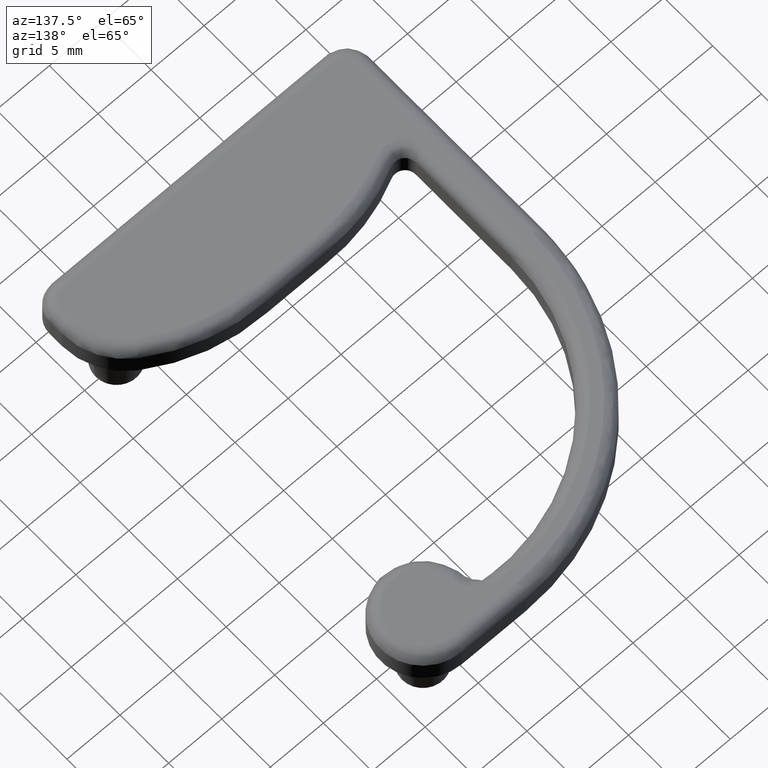
[diagram: clean part render]
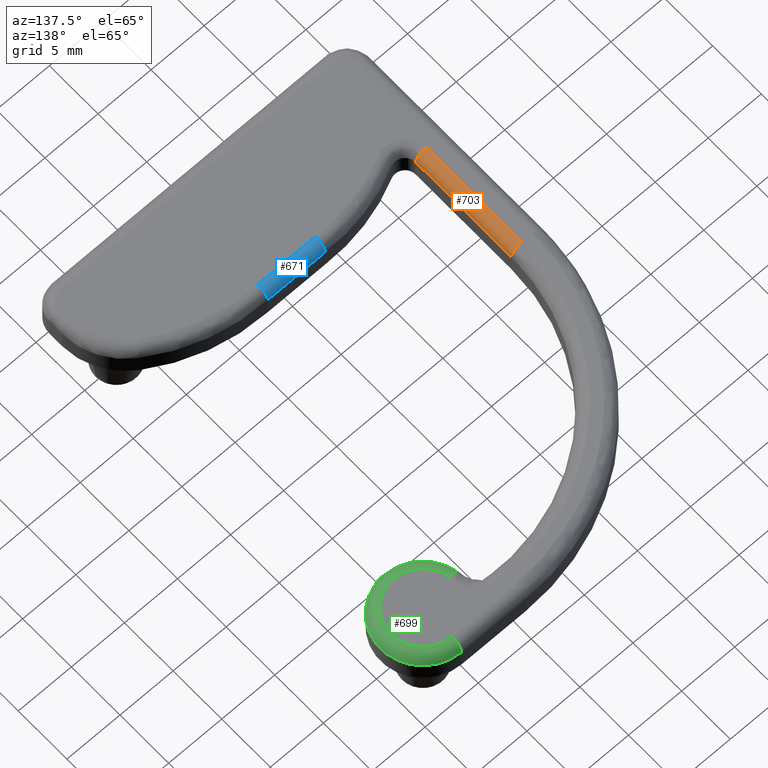
[diagram: same view with three faces highlighted in distinct colors, each labeled with its STEP entity id]
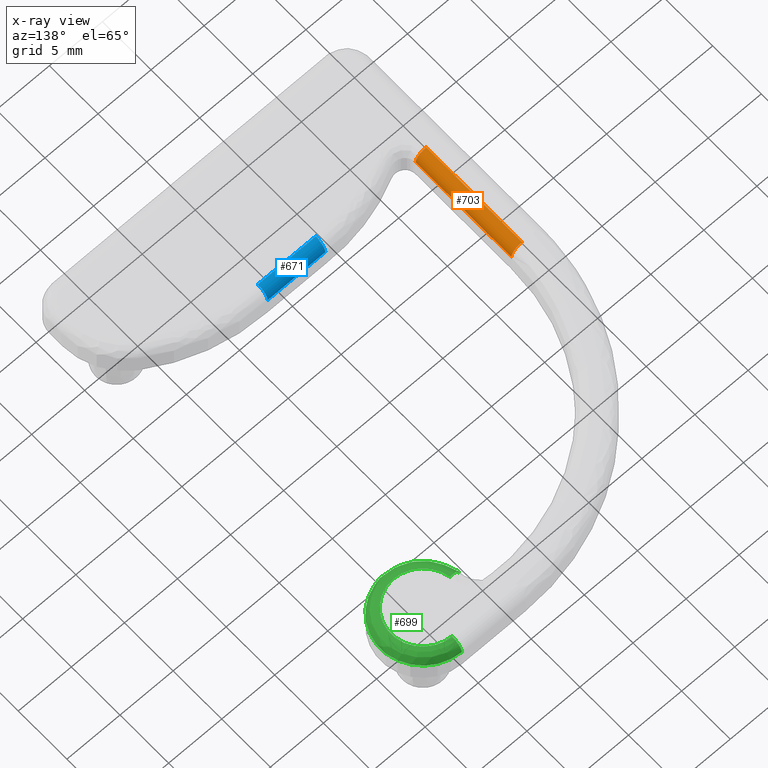
[diagram: x-ray of the same camera — body ghosted, the three highlighted faces saturated]
A machine part, auxiliary view with three faces highlighted in distinct colors.
The next image is the same camera in x-ray (body ghosted, the three faces saturated) — at least one of them is partly hidden behind the body in this view.
Their STEP definitions:

[orange] entity #703 — the highlighted cylindrical surface (edge-blend (fillet) strip) has radius 1 mm, axis along (0, -1, 0).
#34=CYLINDRICAL_SURFACE('',#793,1.);
#97=FACE_OUTER_BOUND('',#148,.T.);
#148=EDGE_LOOP('',(#626,#627,#628,#629));
#220=CIRCLE('',#792,1.);
#221=CIRCLE('',#794,1.);
#239=LINE('',#1252,#274);
#249=LINE('',#1288,#284);
#274=VECTOR('',#874,9.84327927194113);
#284=VECTOR('',#910,9.84327927194113);
#329=VERTEX_POINT('',#1249);
#330=VERTEX_POINT('',#1251);
#342=VERTEX_POINT('',#1282);
#343=VERTEX_POINT('',#1286);
#395=EDGE_CURVE('',#330,#329,#239,.T.);
#414=EDGE_CURVE('',#343,#342,#249,.T.);
#450=EDGE_CURVE('',#343,#330,#220,.T.);
#451=EDGE_CURVE('',#342,#329,#221,.T.);
#626=ORIENTED_EDGE('',*,*,#450,.T.);
#627=ORIENTED_EDGE('',*,*,#395,.T.);
#628=ORIENTED_EDGE('',*,*,#451,.F.);
#629=ORIENTED_EDGE('',*,*,#414,.F.);
#703=ADVANCED_FACE('',(#97),#34,.T.);
#792=AXIS2_PLACEMENT_3D('',#1884,#999,#1000);
#793=AXIS2_PLACEMENT_3D('',#1885,#1001,#1002);
#794=AXIS2_PLACEMENT_3D('',#1886,#1003,#1004);
#874=DIRECTION('',(0.,-1.,0.));
#910=DIRECTION('',(0.,-1.,0.));
#999=DIRECTION('center_axis',(0.,-1.,0.));
#1000=DIRECTION('ref_axis',(1.,0.,0.));
#1001=DIRECTION('center_axis',(0.,-1.,0.));
#1002=DIRECTION('ref_axis',(1.,0.,0.));
#1003=DIRECTION('center_axis',(0.,-1.,0.));
#1004=DIRECTION('ref_axis',(1.,0.,0.));
#1249=CARTESIAN_POINT('',(-2.00000043954517,5.65466681393093,2.99999999999989));
#1251=CARTESIAN_POINT('',(-2.00000043954512,15.4979460858721,2.99999999999989));
#1252=CARTESIAN_POINT('',(-2.00000043954512,15.4979460858721,2.99999999999989));
#1282=CARTESIAN_POINT('',(-1.00000043954512,5.65466681393093,1.99999999999994));
#1286=CARTESIAN_POINT('',(-1.00000043954506,15.4979460858721,1.99999999999994));
#1288=CARTESIAN_POINT('',(-1.00000043954506,15.4979460858721,1.99999999999994));
#1884=CARTESIAN_POINT('Origin',(-2.00000043954506,15.4979460858721,1.99999999999989));
#1885=CARTESIAN_POINT('Origin',(-2.00000043954506,15.4979460858721,1.99999999999989));
#1886=CARTESIAN_POINT('Origin',(-2.00000043954512,5.65466681393093,1.99999999999989));

[blue] entity #671 — the highlighted cylindrical surface (edge-blend (fillet) strip) has radius 1 mm, axis along (1, 0, 0).
#18=CYLINDRICAL_SURFACE('',#737,1.);
#38=B_SPLINE_CURVE_WITH_KNOTS('',3,(#1144,#1145,#1146,#1147,#1148,#1149,
#1150,#1151,#1152,#1153,#1154,#1155,#1156,#1157,#1158,#1159,#1160,#1161,
#1162,#1163,#1164,#1165),.UNSPECIFIED.,.F.,.F.,(4,2,2,2,2,2,2,2,2,2,4),
(0.,0.0187764118785747,0.0331459025856078,0.0415016401362256,0.0531208293565562,
0.0664628475253258,0.0768201627320477,0.0802136985106021,0.0819343012419815,
0.0837191985309972,0.0838978956681293),.UNSPECIFIED.);
#39=B_SPLINE_CURVE_WITH_KNOTS('',3,(#1172,#1173,#1174,#1175,#1176,#1177,
#1178,#1179,#1180,#1181,#1182,#1183,#1184,#1185,#1186,#1187,#1188,#1189,
#1190,#1191,#1192,#1193),.UNSPECIFIED.,.F.,.F.,(4,2,2,2,2,2,2,2,2,2,4),
(-0.367621750021959,-0.285178365813106,-0.222082079184542,-0.185391483001259,
-0.13436736488732,-0.0757785645587134,-0.0302931636690793,-0.0153905926577266,
-0.00783779646558659,0.,0.000785811829450485),.UNSPECIFIED.);
#65=FACE_OUTER_BOUND('',#116,.T.);
#116=EDGE_LOOP('',(#485,#486,#487,#488));
#237=LINE('',#1169,#272);
#238=LINE('',#1171,#273);
#272=VECTOR('',#862,5.43272788734791);
#273=VECTOR('',#863,5.46204718591272);
#323=VERTEX_POINT('',#1141);
#324=VERTEX_POINT('',#1143);
#325=VERTEX_POINT('',#1168);
#326=VERTEX_POINT('',#1170);
#386=EDGE_CURVE('',#324,#323,#38,.T.);
#388=EDGE_CURVE('',#324,#325,#237,.T.);
#389=EDGE_CURVE('',#323,#326,#238,.T.);
#390=EDGE_CURVE('',#325,#326,#39,.T.);
#485=ORIENTED_EDGE('',*,*,#388,.F.);
#486=ORIENTED_EDGE('',*,*,#386,.T.);
#487=ORIENTED_EDGE('',*,*,#389,.T.);
#488=ORIENTED_EDGE('',*,*,#390,.F.);
#671=ADVANCED_FACE('',(#65),#18,.T.);
#737=AXIS2_PLACEMENT_3D('',#1167,#860,#861);
#860=DIRECTION('center_axis',(1.,0.,0.));
#861=DIRECTION('ref_axis',(0.,1.,0.));
#862=DIRECTION('',(1.,0.,0.));
#863=DIRECTION('',(1.,0.,0.));
#1141=CARTESIAN_POINT('',(8.2689725897549,5.4979427036775,3.00000000000047));
#1143=CARTESIAN_POINT('',(8.28363203028931,6.4979427036775,2.00000000000047));
#1144=CARTESIAN_POINT('Ctrl Pts',(8.28363203028931,6.4979427036775,2.00000000000047));
#1145=CARTESIAN_POINT('Ctrl Pts',(8.28363203028931,6.4979427036775,2.06258803959572));
#1146=CARTESIAN_POINT('Ctrl Pts',(8.27804729878791,6.4923521412715,2.13829761606145));
#1147=CARTESIAN_POINT('Ctrl Pts',(8.2788626854953,6.45682966577335,2.29190299400868));
#1148=CARTESIAN_POINT('Ctrl Pts',(8.2835850595113,6.43410229193456,2.36206085613906));
#1149=CARTESIAN_POINT('Ctrl Pts',(8.2818268536606,6.37394238646976,2.48492756783434));
#1150=CARTESIAN_POINT('Ctrl Pts',(8.28033865893028,6.34844340395152,2.52845542025795));
#1151=CARTESIAN_POINT('Ctrl Pts',(8.27892711121172,6.2786847613811,2.62888903903634));
#1152=CARTESIAN_POINT('Ctrl Pts',(8.27986993497776,6.23820348263556,2.6739567361342));
#1153=CARTESIAN_POINT('Ctrl Pts',(8.27882881997318,6.16688909214847,2.74526262970485));
#1154=CARTESIAN_POINT('Ctrl Pts',(8.27626522854998,6.12188382703021,2.78418411533862));
#1155=CARTESIAN_POINT('Ctrl Pts',(8.27496953731188,6.02680116212799,2.85021659354211));
#1156=CARTESIAN_POINT('Ctrl Pts',(8.28853728768676,5.946501200319,2.90681126321354));
#1157=CARTESIAN_POINT('Ctrl Pts',(8.25671462167753,5.75245886212126,2.96837261527278));
#1158=CARTESIAN_POINT('Ctrl Pts',(8.24708717974692,5.70392302765706,2.97981524571215));
#1159=CARTESIAN_POINT('Ctrl Pts',(8.24324216970884,5.63001619823286,2.99155962248366));
#1160=CARTESIAN_POINT('Ctrl Pts',(8.243785289827,5.60529717882294,2.99453507772239));
#1161=CARTESIAN_POINT('Ctrl Pts',(8.25056166090057,5.55453619992729,2.99873408006576));
#1162=CARTESIAN_POINT('Ctrl Pts',(8.25685291528281,5.52968067215028,2.99979480098444));
#1163=CARTESIAN_POINT('Ctrl Pts',(8.2670376582606,5.5028028981398,2.99999118087067));
#1164=CARTESIAN_POINT('Ctrl Pts',(8.26799173727985,5.50036763938052,3.00000000000047));
#1165=CARTESIAN_POINT('Ctrl Pts',(8.26897258975325,5.49794270367937,3.00000000000047));
#1167=CARTESIAN_POINT('Origin',(8.26897258975493,5.4979427036775,2.00000000000047));
#1168=CARTESIAN_POINT('',(13.716360212321,6.49794270702687,2.00000000000069));
#1169=CARTESIAN_POINT('',(8.28363261832769,6.4979427036775,2.00000000000047));
#1170=CARTESIAN_POINT('',(13.7310197756676,5.4979427036775,3.00000000000078));
#1171=CARTESIAN_POINT('',(8.2689725897549,5.4979427036775,3.00000000000047));
#1172=CARTESIAN_POINT('Ctrl Pts',(13.7163606796547,6.4979427036775,2.00000000000078));
#1173=CARTESIAN_POINT('Ctrl Pts',(13.716360679654,6.49794270367748,2.06258748575544));
#1174=CARTESIAN_POINT('Ctrl Pts',(13.7219455328792,6.49235223949033,2.13829528122057));
#1175=CARTESIAN_POINT('Ctrl Pts',(13.7211303693667,6.45683082582597,2.29189943952176));
#1176=CARTESIAN_POINT('Ctrl Pts',(13.716407678229,6.43410390406114,2.36205612733675));
#1177=CARTESIAN_POINT('Ctrl Pts',(13.7181655771669,6.37394614216231,2.48492073254201));
#1178=CARTESIAN_POINT('Ctrl Pts',(13.7196538274099,6.34844774305223,2.52844839518426));
#1179=CARTESIAN_POINT('Ctrl Pts',(13.7210655830963,6.2786877827028,2.62888577083987));
#1180=CARTESIAN_POINT('Ctrl Pts',(13.7201226049449,6.23820445620687,2.67395576256083));
#1181=CARTESIAN_POINT('Ctrl Pts',(13.7211637072536,6.16688855667836,2.74526316524671));
#1182=CARTESIAN_POINT('Ctrl Pts',(13.7237274133589,6.12188241305615,2.78418536986664));
#1183=CARTESIAN_POINT('Ctrl Pts',(13.7250230194604,6.02679420943057,2.85022121039856));
#1184=CARTESIAN_POINT('Ctrl Pts',(13.711454703845,5.94649154044698,2.90681773830984));
#1185=CARTESIAN_POINT('Ctrl Pts',(13.7432823503963,5.75243696965822,2.96837844313015));
#1186=CARTESIAN_POINT('Ctrl Pts',(13.7529099472955,5.70390007633678,2.97982010554667));
#1187=CARTESIAN_POINT('Ctrl Pts',(13.7567511886608,5.63000232567844,2.99156121189281));
#1188=CARTESIAN_POINT('Ctrl Pts',(13.7562073901866,5.60529339579597,2.994535231225));
#1189=CARTESIAN_POINT('Ctrl Pts',(13.7494328359899,5.55454389386935,2.99873360902288));
#1190=CARTESIAN_POINT('Ctrl Pts',(13.7431420827945,5.52968960507087,2.9997944869373));
#1191=CARTESIAN_POINT('Ctrl Pts',(13.7329573776077,5.50280970775698,2.9999911560023));
#1192=CARTESIAN_POINT('Ctrl Pts',(13.7320019696159,5.50037095587385,3.00000000000078));
#1193=CARTESIAN_POINT('Ctrl Pts',(13.7310197756668,5.49794270367782,3.00000000000078));

[green] entity #699 — the highlighted face is a freeform B-spline surface patch.
#46=B_SPLINE_SURFACE_WITH_KNOTS('',3,3,((#1573,#1574,#1575,#1576,#1577,
#1578,#1579,#1580,#1581,#1582,#1583,#1584,#1585,#1586,#1587,#1588,#1589,
#1590,#1591),(#1592,#1593,#1594,#1595,#1596,#1597,#1598,#1599,#1600,#1601,
#1602,#1603,#1604,#1605,#1606,#1607,#1608,#1609,#1610),(#1611,#1612,#1613,
#1614,#1615,#1616,#1617,#1618,#1619,#1620,#1621,#1622,#1623,#1624,#1625,
#1626,#1627,#1628,#1629),(#1630,#1631,#1632,#1633,#1634,#1635,#1636,#1637,
#1638,#1639,#1640,#1641,#1642,#1643,#1644,#1645,#1646,#1647,#1648),(#1649,
#1650,#1651,#1652,#1653,#1654,#1655,#1656,#1657,#1658,#1659,#1660,#1661,
#1662,#1663,#1664,#1665,#1666,#1667),(#1668,#1669,#1670,#1671,#1672,#1673,
#1674,#1675,#1676,#1677,#1678,#1679,#1680,#1681,#1682,#1683,#1684,#1685,
#1686),(#1687,#1688,#1689,#1690,#1691,#1692,#1693,#1694,#1695,#1696,#1697,
#1698,#1699,#1700,#1701,#1702,#1703,#1704,#1705)),.UNSPECIFIED.,.F.,.F.,
 .F.,(4,1,1,1,4),(4,1,1,1,1,1,1,1,1,1,1,1,1,1,1,1,4),(0.,0.390180644032257,
0.780361288064513,1.17054193209677,1.57139639420544),(-0.0106738180764169,
1.02440613742232,2.04881227484464,3.07321841226696,4.09762454968928,5.12203068711161,
6.14643682453392,7.17084296195624,8.19524909937856,9.21965523680089,10.2440613742232,
11.2684675116455,12.2928736490678,13.3172797864902,14.3416859239125,15.3660920613348,
16.4011720168335),.UNSPECIFIED.);
#93=FACE_OUTER_BOUND('',#144,.T.);
#144=EDGE_LOOP('',(#610,#611,#612,#613));
#195=CIRCLE('',#746,3.);
#204=CIRCLE('',#763,4.);
#216=CIRCLE('',#788,1.);
#217=CIRCLE('',#789,1.);
#333=VERTEX_POINT('',#1257);
#334=VERTEX_POINT('',#1259);
#346=VERTEX_POINT('',#1298);
#347=VERTEX_POINT('',#1302);
#399=EDGE_CURVE('',#334,#333,#195,.T.);
#422=EDGE_CURVE('',#347,#346,#204,.T.);
#446=EDGE_CURVE('',#347,#334,#216,.T.);
#447=EDGE_CURVE('',#346,#333,#217,.T.);
#610=ORIENTED_EDGE('',*,*,#446,.T.);
#611=ORIENTED_EDGE('',*,*,#399,.T.);
#612=ORIENTED_EDGE('',*,*,#447,.F.);
#613=ORIENTED_EDGE('',*,*,#422,.F.);
#699=ADVANCED_FACE('',(#93),#46,.T.);
#746=AXIS2_PLACEMENT_3D('',#1260,#881,#882);
#763=AXIS2_PLACEMENT_3D('',#1304,#929,#930);
#788=AXIS2_PLACEMENT_3D('',#1572,#991,#992);
#789=AXIS2_PLACEMENT_3D('',#1706,#993,#994);
#881=DIRECTION('center_axis',(0.,0.,-1.));
#882=DIRECTION('ref_axis',(-1.,0.,0.));
#929=DIRECTION('center_axis',(0.,0.,-1.));
#930=DIRECTION('ref_axis',(-1.,0.,0.));
#991=DIRECTION('center_axis',(1.,0.,0.));
#992=DIRECTION('ref_axis',(0.,1.,0.));
#993=DIRECTION('center_axis',(-0.146926884603766,0.989147355342283,-8.351826E-15));
#994=DIRECTION('ref_axis',(-0.989147355342283,-0.146926884603766,-5.622652E-14));
#1257=CARTESIAN_POINT('',(19.0325574944278,31.0571654320609,3.00000000000108));
#1259=CARTESIAN_POINT('',(21.9999995604546,34.4979460858721,3.00000000000125));
#1260=CARTESIAN_POINT('Origin',(21.9999995604546,31.4979460858722,3.00000000000125));
#1298=CARTESIAN_POINT('',(18.0434101390856,30.9102385474571,2.00000000000103));
#1302=CARTESIAN_POINT('',(21.9999995604547,35.4979460858721,2.00000000000125));
#1304=CARTESIAN_POINT('Origin',(21.9999995604547,31.4979460858722,2.00000000000125));
#1572=CARTESIAN_POINT('Origin',(21.9999995604547,34.4979460858722,2.00000000000125));
#1573=CARTESIAN_POINT('Ctrl Pts',(21.9881495021506,35.4979282884099,2.00000000000125));
#1574=CARTESIAN_POINT('Ctrl Pts',(22.3711730462709,35.499078960041,2.00000000000127));
#1575=CARTESIAN_POINT('Ctrl Pts',(23.1381403459129,35.3903354786945,2.00000000000132));
#1576=CARTESIAN_POINT('Ctrl Pts',(24.18995515693,34.9101997344768,2.00000000000137));
#1577=CARTESIAN_POINT('Ctrl Pts',(25.0620099372897,34.1558451462971,2.00000000000143));
#1578=CARTESIAN_POINT('Ctrl Pts',(25.6862497871965,33.1865994515913,2.00000000000146));
#1579=CARTESIAN_POINT('Ctrl Pts',(26.0125237209784,32.0808261508489,2.00000000000148));
#1580=CARTESIAN_POINT('Ctrl Pts',(26.0143670720204,30.9279270104868,2.00000000000148));
#1581=CARTESIAN_POINT('Ctrl Pts',(25.6916536987487,29.8211138808366,2.00000000000146));
#1582=CARTESIAN_POINT('Ctrl Pts',(25.0704688231612,28.8498727067961,2.00000000000143));
#1583=CARTESIAN_POINT('Ctrl Pts',(24.2010369429926,28.0927278900294,2.00000000000137));
#1584=CARTESIAN_POINT('Ctrl Pts',(23.1536509334957,27.610896205346,2.00000000000132));
#1585=CARTESIAN_POINT('Ctrl Pts',(22.0129929600043,27.4433276721984,2.00000000000125));
#1586=CARTESIAN_POINT('Ctrl Pts',(20.8712818113489,27.6035928447599,2.00000000000119));
#1587=CARTESIAN_POINT('Ctrl Pts',(19.8208373793614,28.0786497910557,2.00000000000113));
#1588=CARTESIAN_POINT('Ctrl Pts',(18.9465412413911,28.8304055012343,2.00000000000108));
#1589=CARTESIAN_POINT('Ctrl Pts',(18.31707636643,29.8002604907769,2.00000000000104));
#1590=CARTESIAN_POINT('Ctrl Pts',(18.0968249235161,30.5429268259166,2.00000000000103));
#1591=CARTESIAN_POINT('Ctrl Pts',(18.0416866512493,30.9219626162149,2.00000000000103));
#1592=CARTESIAN_POINT('Ctrl Pts',(21.9881495021506,35.4979282884099,2.13006021467867));
#1593=CARTESIAN_POINT('Ctrl Pts',(22.3711730462709,35.499078960041,2.13006021467869));
#1594=CARTESIAN_POINT('Ctrl Pts',(23.1381403459129,35.3903354786945,2.13006021467873));
#1595=CARTESIAN_POINT('Ctrl Pts',(24.18995515693,34.9101997344768,2.13006021467879));
#1596=CARTESIAN_POINT('Ctrl Pts',(25.0620099372897,34.1558451462971,2.13006021467884));
#1597=CARTESIAN_POINT('Ctrl Pts',(25.6862497871965,33.1865994515913,2.13006021467888));
#1598=CARTESIAN_POINT('Ctrl Pts',(26.0125237209784,32.0808261508489,2.1300602146789));
#1599=CARTESIAN_POINT('Ctrl Pts',(26.0143670720204,30.9279270104868,2.1300602146789));
#1600=CARTESIAN_POINT('Ctrl Pts',(25.6916536987487,29.8211138808366,2.13006021467888));
#1601=CARTESIAN_POINT('Ctrl Pts',(25.0704688231611,28.8498727067961,2.13006021467884));
#1602=CARTESIAN_POINT('Ctrl Pts',(24.2010369429926,28.0927278900294,2.1300602146788));
#1603=CARTESIAN_POINT('Ctrl Pts',(23.1536509334957,27.610896205346,2.13006021467873));
#1604=CARTESIAN_POINT('Ctrl Pts',(22.0129929600043,27.4433276721984,2.13006021467867));
#1605=CARTESIAN_POINT('Ctrl Pts',(20.8712818113489,27.6035928447599,2.13006021467861));
#1606=CARTESIAN_POINT('Ctrl Pts',(19.8208373793614,28.0786497910557,2.13006021467855));
#1607=CARTESIAN_POINT('Ctrl Pts',(18.9465412413911,28.8304055012343,2.1300602146785));
#1608=CARTESIAN_POINT('Ctrl Pts',(18.31707636643,29.8002604907769,2.13006021467846));
#1609=CARTESIAN_POINT('Ctrl Pts',(18.096824923516,30.5429268259166,2.13006021467845));
#1610=CARTESIAN_POINT('Ctrl Pts',(18.0416866512493,30.9219626162149,2.13006021467845));
#1611=CARTESIAN_POINT('Ctrl Pts',(21.9883036677834,35.4458897438337,2.39302781734453));
#1612=CARTESIAN_POINT('Ctrl Pts',(22.3663441927887,35.4470254455789,2.39302781734455));
#1613=CARTESIAN_POINT('Ctrl Pts',(23.1233334825322,35.3396966836524,2.39302781734459));
#1614=CARTESIAN_POINT('Ctrl Pts',(24.1614645046828,34.8658073585593,2.39302781734465));
#1615=CARTESIAN_POINT('Ctrl Pts',(25.0221741191736,34.1212666927612,2.3930278173447));
#1616=CARTESIAN_POINT('Ctrl Pts',(25.6382927996324,33.1646305879823,2.39302781734473));
#1617=CARTESIAN_POINT('Ctrl Pts',(25.9603220093662,32.073243059548,2.39302781734475));
#1618=CARTESIAN_POINT('Ctrl Pts',(25.9621413789752,30.9353427842482,2.39302781734475));
#1619=CARTESIAN_POINT('Ctrl Pts',(25.6436264079488,29.8429289547619,2.39302781734473));
#1620=CARTESIAN_POINT('Ctrl Pts',(25.030522957528,28.8843233312241,2.3930278173447));
#1621=CARTESIAN_POINT('Ctrl Pts',(24.1724021200995,28.1370287368591,2.39302781734465));
#1622=CARTESIAN_POINT('Ctrl Pts',(23.1386422821164,27.6614655349669,2.39302781734459));
#1623=CARTESIAN_POINT('Ctrl Pts',(22.0128239198517,27.4960770171645,2.39302781734453));
#1624=CARTESIAN_POINT('Ctrl Pts',(20.8859660839098,27.6542571888674,2.39302781734446));
#1625=CARTESIAN_POINT('Ctrl Pts',(19.8491876125768,28.1231337896455,2.3930278173444));
#1626=CARTESIAN_POINT('Ctrl Pts',(18.9862657998522,28.8651093880502,2.39302781734435));
#1627=CARTESIAN_POINT('Ctrl Pts',(18.3649900703163,29.8223468609264,2.39302781734432));
#1628=CARTESIAN_POINT('Ctrl Pts',(18.1476040312841,30.5553513342804,2.39302781734431));
#1629=CARTESIAN_POINT('Ctrl Pts',(18.0931830910689,30.9294559849209,2.3930278173443));
#1630=CARTESIAN_POINT('Ctrl Pts',(21.9889629704028,35.2233424216212,2.7254129114742));
#1631=CARTESIAN_POINT('Ctrl Pts',(22.3456931845687,35.224414103359,2.72541291147422));
#1632=CARTESIAN_POINT('Ctrl Pts',(23.0600106547596,35.1231355109974,2.72541291147426));
#1633=CARTESIAN_POINT('Ctrl Pts',(24.03962177412,34.6759595358052,2.72541291147431));
#1634=CARTESIAN_POINT('Ctrl Pts',(24.851812808686,33.9733889551469,2.72541291147436));
#1635=CARTESIAN_POINT('Ctrl Pts',(25.4332006078606,33.0706788487852,2.72541291147439));
#1636=CARTESIAN_POINT('Ctrl Pts',(25.7370768892577,32.0408133158483,2.72541291147441));
#1637=CARTESIAN_POINT('Ctrl Pts',(25.7387937002008,30.9670569800656,2.72541291147441));
#1638=CARTESIAN_POINT('Ctrl Pts',(25.4382335583279,29.9362229991188,2.7254129114744));
#1639=CARTESIAN_POINT('Ctrl Pts',(24.8596910193465,29.0316543966378,2.72541291147436));
#1640=CARTESIAN_POINT('Ctrl Pts',(24.04994283134,28.3264851275784,2.72541291147432));
#1641=CARTESIAN_POINT('Ctrl Pts',(23.074456490571,27.8777296327593,2.72541291147426));
#1642=CARTESIAN_POINT('Ctrl Pts',(22.0121010050661,27.7216641385232,2.7254129114742));
#1643=CARTESIAN_POINT('Ctrl Pts',(20.9487646414728,27.8709276243031,2.72541291147414));
#1644=CARTESIAN_POINT('Ctrl Pts',(19.970429829045,28.3133734446569,2.72541291147408));
#1645=CARTESIAN_POINT('Ctrl Pts',(19.1561512988336,29.0135235519002,2.72541291147404));
#1646=CARTESIAN_POINT('Ctrl Pts',(18.569897155709,29.9168011269748,2.725412911474));
#1647=CARTESIAN_POINT('Ctrl Pts',(18.3647652634084,30.6084858154362,2.72541291147399));
#1648=CARTESIAN_POINT('Ctrl Pts',(18.3134120555537,30.9615020222081,2.72541291147399));
#1649=CARTESIAN_POINT('Ctrl Pts',(21.9899566452313,34.8879279006718,2.94999057467997));
#1650=CARTESIAN_POINT('Ctrl Pts',(22.3145688018514,34.8889030939868,2.94999057467999));
#1651=CARTESIAN_POINT('Ctrl Pts',(22.9645729935407,34.7967430778725,2.94999057468002));
#1652=CARTESIAN_POINT('Ctrl Pts',(23.8559852302308,34.3898284069771,2.94999057468007));
#1653=CARTESIAN_POINT('Ctrl Pts',(24.5950509803366,33.7505134784713,2.94999057468011));
#1654=CARTESIAN_POINT('Ctrl Pts',(25.1240937690557,32.9290785038255,2.94999057468014));
#1655=CARTESIAN_POINT('Ctrl Pts',(25.4006106749215,31.9919364889362,2.94999057468016));
#1656=CARTESIAN_POINT('Ctrl Pts',(25.4021729135001,31.0148553615136,2.94999057468016));
#1657=CARTESIAN_POINT('Ctrl Pts',(25.1286735799056,30.0768320924313,2.94999057468015));
#1658=CARTESIAN_POINT('Ctrl Pts',(24.6022198795531,29.2537059505968,2.94999057468012));
#1659=CARTESIAN_POINT('Ctrl Pts',(23.8653770353253,28.6120263055272,2.94999057468007));
#1660=CARTESIAN_POINT('Ctrl Pts',(22.9777182044892,28.2036743264022,2.94999057468002));
#1661=CARTESIAN_POINT('Ctrl Pts',(22.011011456497,28.0616601245034,2.94999057467997));
#1662=CARTESIAN_POINT('Ctrl Pts',(21.04341214337,28.197484733969,2.94999057467991));
#1663=CARTESIAN_POINT('Ctrl Pts',(20.1531613018447,28.6000951275641,2.94999057467986));
#1664=CARTESIAN_POINT('Ctrl Pts',(19.4121960029021,29.2372075089793,2.94999057467982));
#1665=CARTESIAN_POINT('Ctrl Pts',(18.8787250095013,30.0591588605268,2.94999057467979));
#1666=CARTESIAN_POINT('Ctrl Pts',(18.6920620824293,30.688568003645,2.94999057467978));
#1667=CARTESIAN_POINT('Ctrl Pts',(18.6453324394411,31.0098005419934,2.94999057467978));
#1668=CARTESIAN_POINT('Ctrl Pts',(21.9907480460159,34.6207908982726,3.00140555593817));
#1669=CARTESIAN_POINT('Ctrl Pts',(22.2897801484648,34.6216892445031,3.00140555593819));
#1670=CARTESIAN_POINT('Ctrl Pts',(22.8885627759096,34.5367916126112,3.00140555593822));
#1671=CARTESIAN_POINT('Ctrl Pts',(23.7097300361306,34.1619425902513,3.00140555593827));
#1672=CARTESIAN_POINT('Ctrl Pts',(24.390556002118,33.5730068917593,3.00140555593831));
#1673=CARTESIAN_POINT('Ctrl Pts',(24.8779092147743,32.8163025524916,3.00140555593834));
#1674=CARTESIAN_POINT('Ctrl Pts',(25.1326360635303,31.953009107405,3.00140555593835));
#1675=CARTESIAN_POINT('Ctrl Pts',(25.1340751947433,31.0529238276713,3.00140555593835));
#1676=CARTESIAN_POINT('Ctrl Pts',(24.8821281278352,30.188818572895,3.00140555593834));
#1677=CARTESIAN_POINT('Ctrl Pts',(24.3971599784671,29.4305563336236,3.00140555593831));
#1678=CARTESIAN_POINT('Ctrl Pts',(23.7183817491546,28.8394422627221,3.00140555593827));
#1679=CARTESIAN_POINT('Ctrl Pts',(22.900672119281,28.4632691947497,3.00140555593822));
#1680=CARTESIAN_POINT('Ctrl Pts',(22.0101436981843,28.332445981554,3.00140555593817));
#1681=CARTESIAN_POINT('Ctrl Pts',(21.1187930477799,28.4575673539502,3.00140555593813));
#1682=CARTESIAN_POINT('Ctrl Pts',(20.29869566258,28.828451284232,3.00140555593808));
#1683=CARTESIAN_POINT('Ctrl Pts',(19.6161198358101,29.4153580005255,3.00140555593804));
#1684=CARTESIAN_POINT('Ctrl Pts',(19.1246873694073,30.1725380252147,3.00140555593801));
#1685=CARTESIAN_POINT('Ctrl Pts',(18.9527338353413,30.7523485330124,3.001405555938));
#1686=CARTESIAN_POINT('Ctrl Pts',(18.9096865769301,31.0482673375251,3.001405555938));
#1687=CARTESIAN_POINT('Ctrl Pts',(21.9911436278862,34.4872624041386,2.99994154504976));
#1688=CARTESIAN_POINT('Ctrl Pts',(22.2773895341786,34.4881223383357,2.99994154504977));
#1689=CARTESIAN_POINT('Ctrl Pts',(22.8505690505629,34.4068548109233,2.99994154504981));
#1690=CARTESIAN_POINT('Ctrl Pts',(23.6366243426022,34.0480338106042,2.99994154504985));
#1691=CARTESIAN_POINT('Ctrl Pts',(24.2883391386575,33.4842801822071,2.99994154504989));
#1692=CARTESIAN_POINT('Ctrl Pts',(24.7548538068114,32.7599314664164,2.99994154504991));
#1693=CARTESIAN_POINT('Ctrl Pts',(24.9986888903427,31.9335512464956,2.99994154504993));
#1694=CARTESIAN_POINT('Ctrl Pts',(25.0000664863097,31.0719523595272,2.99994154504993));
#1695=CARTESIAN_POINT('Ctrl Pts',(24.7588923250267,30.2447950417681,2.99994154504992));
#1696=CARTESIAN_POINT('Ctrl Pts',(24.2946607381771,29.5189550396078,2.99994154504989));
#1697=CARTESIAN_POINT('Ctrl Pts',(23.644906120429,28.953116182971,2.99994154504985));
#1698=CARTESIAN_POINT('Ctrl Pts',(22.8621606152799,28.5930277513854,2.99994154504981));
#1699=CARTESIAN_POINT('Ctrl Pts',(22.0097099489855,28.4677983565526,2.99994154504976));
#1700=CARTESIAN_POINT('Ctrl Pts',(21.1564722107633,28.5875697133561,2.99994154504971));
#1701=CARTESIAN_POINT('Ctrl Pts',(20.3714410473796,28.942595163411,2.99994154504966));
#1702=CARTESIAN_POINT('Ctrl Pts',(19.7180512121514,29.5044065660621,2.99994154504963));
#1703=CARTESIAN_POINT('Ctrl Pts',(19.2476317134589,30.2292106276283,2.9999415450496));
#1704=CARTESIAN_POINT('Ctrl Pts',(19.0830306729826,30.7842292457741,2.99994154504959));
#1705=CARTESIAN_POINT('Ctrl Pts',(19.0418240553773,31.0674949744133,2.99994154504959));
#1706=CARTESIAN_POINT('Origin',(19.0325574944279,31.0571654320605,2.00000000000108));